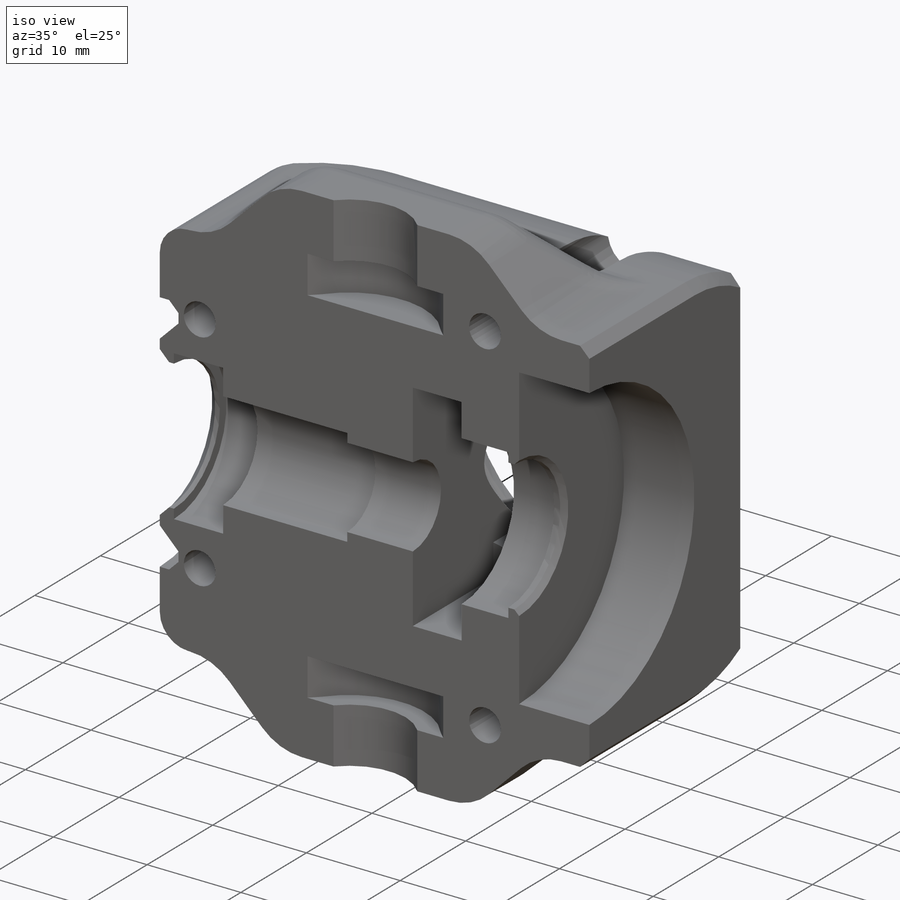
[diagram: iso view]
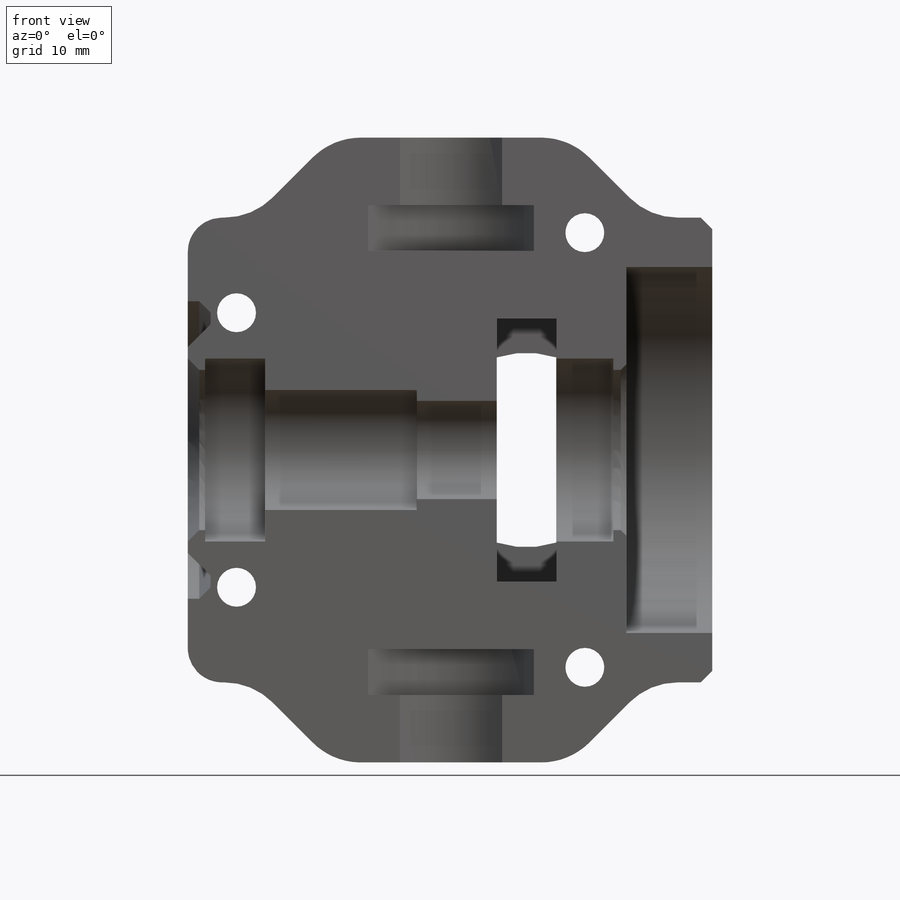
[diagram: front view]
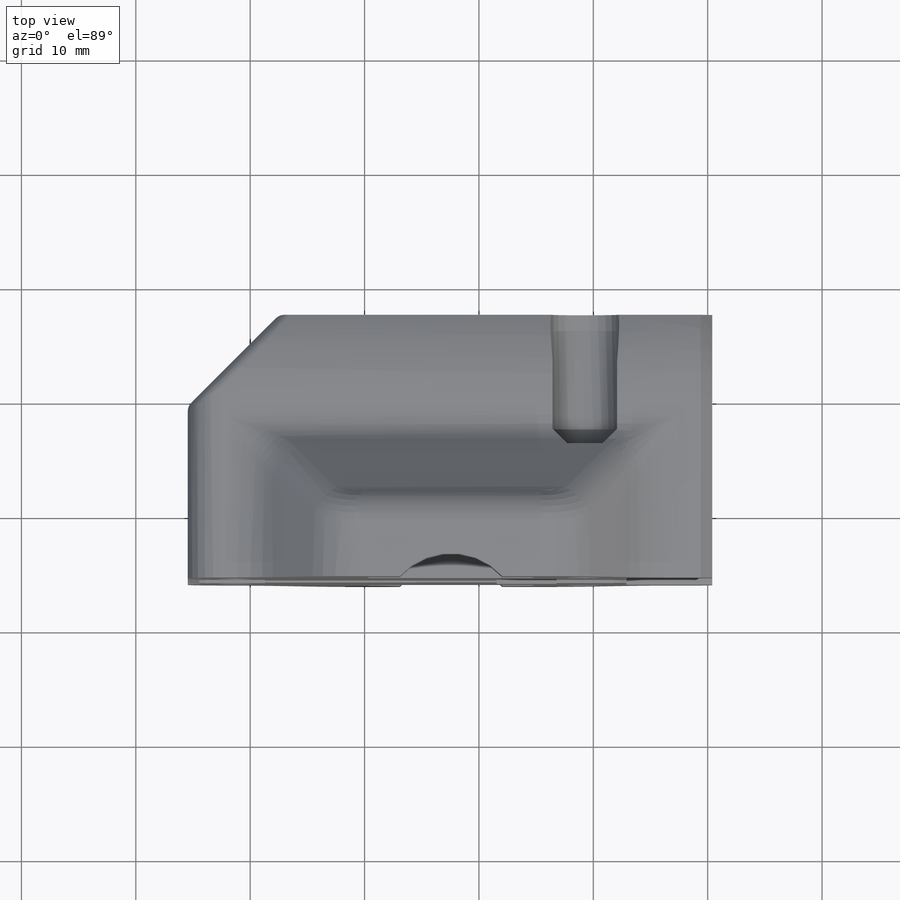
[diagram: top view]
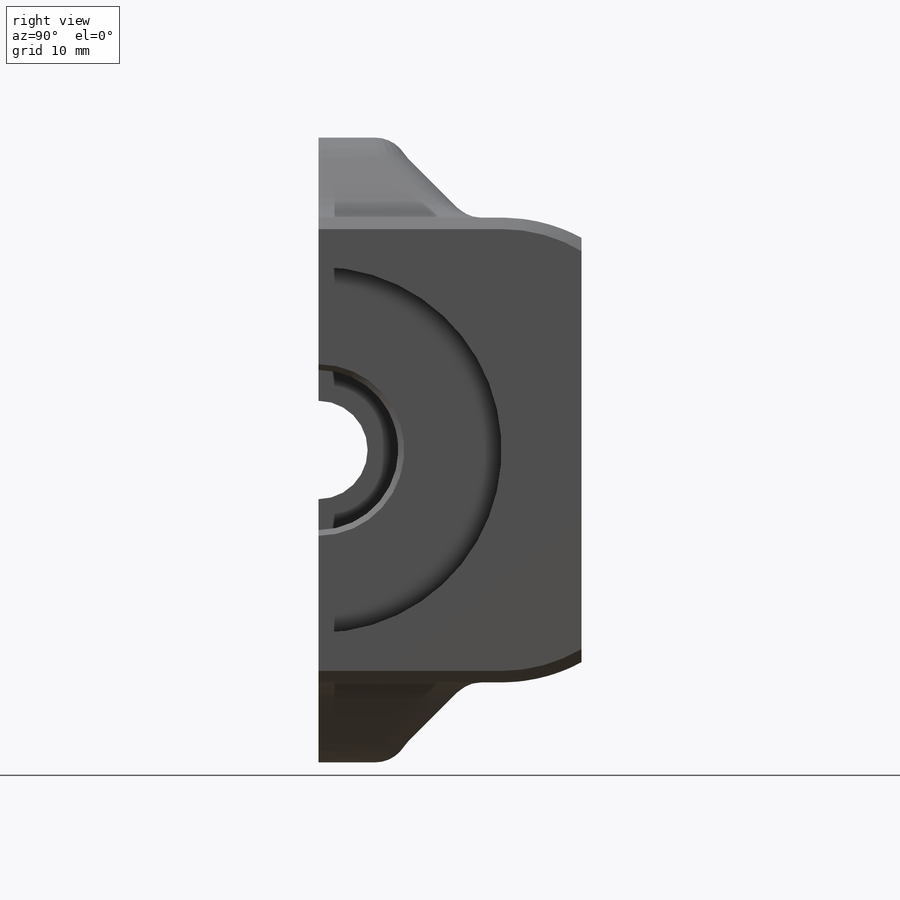
[diagram: right view]
SOLIDWORKS PART (.sldprt)
format: sldprt  version: not decoded by parser v0  size: 1,779,712 bytes
history: native  units: mm
features: sketch x24, cut_extrude x17, chamfer x6, fillet x4, extrude x2, cut_revolve x2, mirror x2, plane x2, material x1, pattern_circular x1, revolve x1 (+12 scaffold rows collapsed)
feature tree (74):
  scaffold x12  (default folders/planes/origin — collapsed)
  material  "Material <not specified>"
  sketch  "Sketch1"  dims[D1=7.0mm D2=6.1mm]
  sketch  "Sketch2"  dims[D1=7.5mm]
  extrude  "Boss-Extrude1"  Depth=23mm
  sketch  "Sketch5"  dims[D1=0.0mm D2=0.0mm]
  cut_revolve  "Cut-Revolve1"  Angle=360deg
  sketch  "Sketch7"
  cut_extrude  "Cut-Extrude2"  Depth=12.25mm
  sketch  "Sketch8"  dims[D1=3.4mm D2=24.0mm D3=38.0mm D4=1.0mm]
  cut_extrude  "Cut-Extrude3"  [1 undecoded]
  sketch  "Sketch9"  dims[D1=~3.533582mm D2=4.0mm]
  cut_extrude  "Cut-Extrude4"  [1 undecoded]
  sketch  "Sketch10"  dims[D1=16.0mm]
  cut_extrude  "Cut-Extrude5"  [1 undecoded]
  mirror  "Mirror1"
  sketch  "Sketch11"  dims[D1=0.0mm D2=0.0mm]
  cut_extrude  "Cut-Extrude6"  [1 undecoded]
  sketch  "Sketch12"  dims[D1=0.0mm]
  cut_extrude  "Cut-Extrude7"  Depth=16mm
  chamfer  "Chamfer1"  Distance=6mm Angle=45deg
  sketch  "Sketch13"  dims[D1=3.6mm]
  cut_extrude  "Cut-Extrude8"  Depth=11.3mm
  sketch  "Sketch14"  dims[D1=24.6mm]
  cut_extrude  "Cut-Extrude9"  Depth=0.8mm
  sketch  "Sketch15"  dims[D1=25.0mm]
  cut_extrude  "Cut-Extrude10"  Depth=0.2mm
  chamfer  "Chamfer3"  Distance=0.2mm Angle=45deg
  sketch  "Sketch16"  dims[D1=0.0mm]
  cut_extrude  "Cut-Extrude11"  Depth=1.5mm
  sketch  "Sketch17"  dims[c1.D1=~0.741098mm c2.D1=135.0deg]
  cut_revolve  "Cut-Revolve2"  Angle=360deg
  sketch  "Sketch18"  dims[c1.D2=~13.711464mm c1.D1=6.662mm c2.D2=~0.28925mm c2.D3=0.2mm c2.D1=~0.28925mm]
  extrude  "Boss-Extrude3"  Depth=0.4mm
  pattern_circular  "CirPattern2"  Count=40 Angle=360deg
  sketch  "Sketch22"  dims[c1.D1=~7.096746mm c2.D1=~179.645117deg c3.D1=7.0mm c3.D2=0.0mm]
  revolve  "Revolve3"  Angle=360deg
  plane  "Plane2"  Offset=7.34821mm
  sketch  "Sketch24"  dims[D1=17.0mm D2=0.0mm D3=0.0mm]
  cut_extrude  "Cut-Extrude13"  [1 undecoded]
  sketch  "Sketch36"  dims[c1.D1=8.0mm c1.D2=~14.244223mm c2.D2=45.0deg]
  cut_extrude  "Cut-Extrude24"  [1 undecoded]
  fillet  "Fillet1"  Radius=3mm
  sketch  "Sketch25"  dims[c1.D1=~29.26606mm c1.D2=~14.61903mm c1.D3=6.9645mm c2.D1=~14.61903mm]
  cut_extrude  "Cut-Extrude14"  [1 undecoded]
  sketch  "Sketch26"  dims[D1=6.0mm]
  cut_extrude  "Cut-Extrude15"  Depth=11.3mm
  plane  "Plane3"
  fillet  "Fillet3"  Radius=3mm
  chamfer  "Chamfer4"  Distance=1mm Angle=45deg
  chamfer  "Chamfer8"  Distance=1.5mm Angle=45deg
  sketch  "Sketch29"  dims[D1=1.0mm]
  cut_extrude  "Cut-Extrude18"  [1 undecoded]
  chamfer  "Chamfer9"  Distance=1.3mm Angle=45deg
  sketch  "Sketch31"  dims[D1=10.5mm]
  cut_extrude  "Cut-Extrude20"  Depth=15mm
  sketch  "Sketch33"
  chamfer  "Chamfer10"  Distance=0.4mm Angle=45deg
  fillet  "Fillet8"  Radius=1mm
  sketch  "Sketch37"  dims[D1=2.5mm]
  cut_extrude  "Cut-Extrude25"  Depth=0.2mm
  fillet  "Fillet9"  Radius=3mm
  mirror  "Mirror2"
decode coverage: 47 of 59 modeling features carry decoded parameters
note: ~ marks probable driven/reference dimensions
note: 8 parameter values undecoded
summary: no parameter record found for 8 features
note: suppression state not decoded; provenance and decode notes live in map.json
